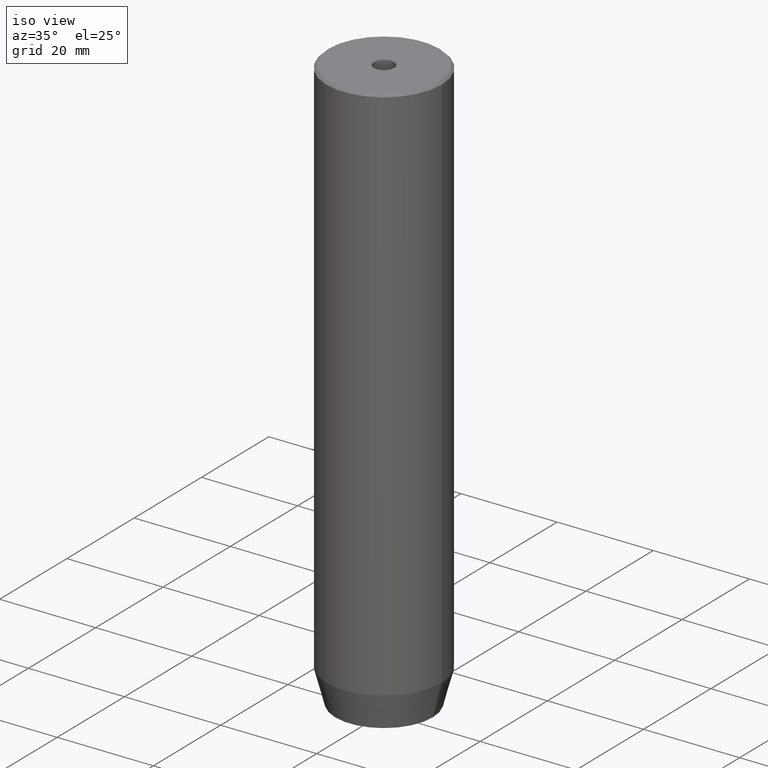
[diagram: clean part render]
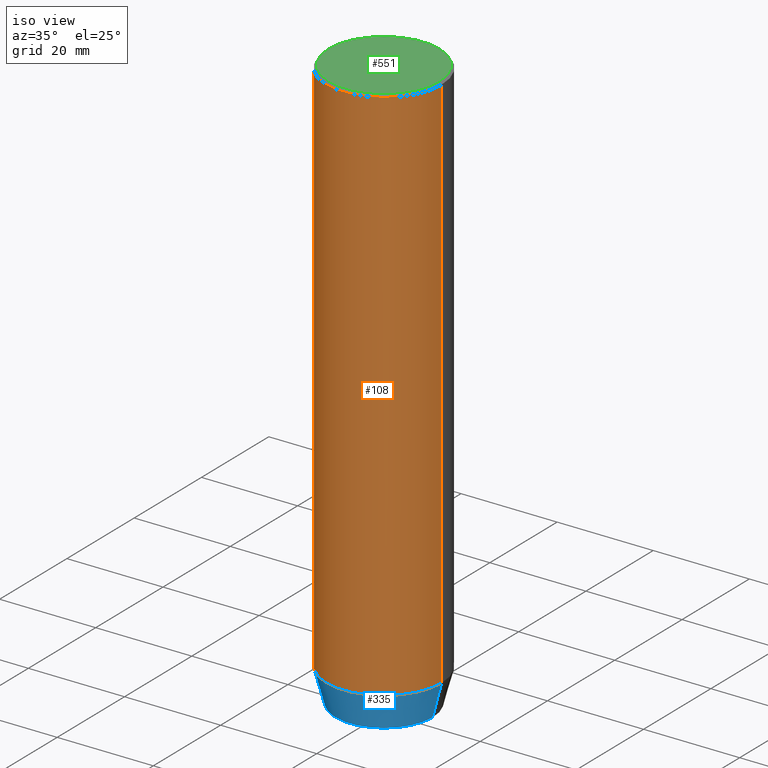
[diagram: same view with three faces highlighted in distinct colors, each labeled with its STEP entity id]
A machine part, iso view with three faces highlighted in distinct colors.
Their STEP definitions:

[orange] entity #108 — the highlighted cylindrical surface (partial cylindrical patch) has radius 12 mm, axis along (-0, -0, 1).
#4 = DIRECTION ( 'NONE',  ( -0.000000000000000000, -0.000000000000000000, 1.000000000000000000 ) ) ;
#9 = LINE ( 'NONE', #365, #400 ) ;
#18 = ORIENTED_EDGE ( 'NONE', *, *, #124, .F. ) ;
#20 = DIRECTION ( 'NONE',  ( 1.000000000000000000, 0.000000000000000000, 0.000000000000000000 ) ) ;
#32 = LINE ( 'NONE', #534, #37 ) ;
#37 = VECTOR ( 'NONE', #433, 1000.000000000000000 ) ;
#80 = VERTEX_POINT ( 'NONE', #227 ) ;
#108 = ADVANCED_FACE ( 'NONE', ( #408 ), #458, .T. ) ;
#124 = EDGE_CURVE ( 'NONE', #177, #80, #9, .T. ) ;
#125 = ORIENTED_EDGE ( 'NONE', *, *, #278, .T. ) ;
#148 = EDGE_LOOP ( 'NONE', ( #18, #360, #533, #125 ) ) ;
#177 = VERTEX_POINT ( 'NONE', #422 ) ;
#181 = AXIS2_PLACEMENT_3D ( 'NONE', #474, #195, #20 ) ;
#195 = DIRECTION ( 'NONE',  ( 0.000000000000000000, 0.000000000000000000, -1.000000000000000000 ) ) ;
#208 = AXIS2_PLACEMENT_3D ( 'NONE', #368, #239, #543 ) ;
#219 = CARTESIAN_POINT ( 'NONE',  ( 0.000000000000000000, 0.000000000000000000, -112.9999999999999858 ) ) ;
#227 = CARTESIAN_POINT ( 'NONE',  ( -12.00000000000000000, 1.469576158976823947E-15, -0.5000000000000056621 ) ) ;
#239 = DIRECTION ( 'NONE',  ( -0.000000000000000000, -0.000000000000000000, 1.000000000000000000 ) ) ;
#251 = CIRCLE ( 'NONE', #384, 12.00000000000000000 ) ;
#278 = EDGE_CURVE ( 'NONE', #468, #80, #472, .T. ) ;
#303 = CARTESIAN_POINT ( 'NONE',  ( 12.00000000000000000, 0.000000000000000000, -112.9999999999999858 ) ) ;
#360 = ORIENTED_EDGE ( 'NONE', *, *, #381, .T. ) ;
#365 = CARTESIAN_POINT ( 'NONE',  ( -12.00000000000000000, 1.469576158976823947E-15, 0.000000000000000000 ) ) ;
#368 = CARTESIAN_POINT ( 'NONE',  ( 0.000000000000000000, 0.000000000000000000, 0.000000000000000000 ) ) ;
#381 = EDGE_CURVE ( 'NONE', #177, #386, #251, .T. ) ;
#384 = AXIS2_PLACEMENT_3D ( 'NONE', #219, #531, #522 ) ;
#386 = VERTEX_POINT ( 'NONE', #303 ) ;
#400 = VECTOR ( 'NONE', #4, 1000.000000000000000 ) ;
#408 = FACE_OUTER_BOUND ( 'NONE', #148, .T. ) ;
#422 = CARTESIAN_POINT ( 'NONE',  ( -12.00000000000000000, 1.469576158976823947E-15, -112.9999999999999858 ) ) ;
#427 = EDGE_CURVE ( 'NONE', #386, #468, #32, .T. ) ;
#433 = DIRECTION ( 'NONE',  ( -0.000000000000000000, -0.000000000000000000, 1.000000000000000000 ) ) ;
#458 = CYLINDRICAL_SURFACE ( 'NONE', #208, 12.00000000000000000 ) ;
#468 = VERTEX_POINT ( 'NONE', #545 ) ;
#472 = CIRCLE ( 'NONE', #181, 12.00000000000000000 ) ;
#474 = CARTESIAN_POINT ( 'NONE',  ( 0.000000000000000000, 0.000000000000000000, -0.5000000000000056621 ) ) ;
#522 = DIRECTION ( 'NONE',  ( 1.000000000000000000, 0.000000000000000000, 0.000000000000000000 ) ) ;
#531 = DIRECTION ( 'NONE',  ( -0.000000000000000000, -0.000000000000000000, 1.000000000000000000 ) ) ;
#533 = ORIENTED_EDGE ( 'NONE', *, *, #427, .T. ) ;
#534 = CARTESIAN_POINT ( 'NONE',  ( 12.00000000000000000, 0.000000000000000000, 0.000000000000000000 ) ) ;
#543 = DIRECTION ( 'NONE',  ( 1.000000000000000000, 0.000000000000000000, 0.000000000000000000 ) ) ;
#545 = CARTESIAN_POINT ( 'NONE',  ( 12.00000000000000000, 0.000000000000000000, -0.5000000000000056621 ) ) ;

[blue] entity #335 — the highlighted conical surface has half-angle 15 deg.
#10 = VECTOR ( 'NONE', #221, 1000.000000000000000 ) ;
#45 = AXIS2_PLACEMENT_3D ( 'NONE', #153, #141, #467 ) ;
#46 = VECTOR ( 'NONE', #423, 1000.000000000000000 ) ;
#59 = CARTESIAN_POINT ( 'NONE',  ( 12.00000000000000000, 0.000000000000000000, -112.9999999999999858 ) ) ;
#74 = EDGE_LOOP ( 'NONE', ( #535, #257, #475, #152 ) ) ;
#141 = DIRECTION ( 'NONE',  ( -0.000000000000000000, -0.000000000000000000, 1.000000000000000000 ) ) ;
#152 = ORIENTED_EDGE ( 'NONE', *, *, #381, .F. ) ;
#153 = CARTESIAN_POINT ( 'NONE',  ( 0.000000000000000000, 0.000000000000000000, -120.0000000000000000 ) ) ;
#162 = DIRECTION ( 'NONE',  ( -0.000000000000000000, -0.000000000000000000, 1.000000000000000000 ) ) ;
#177 = VERTEX_POINT ( 'NONE', #422 ) ;
#187 = VERTEX_POINT ( 'NONE', #382 ) ;
#201 = FACE_OUTER_BOUND ( 'NONE', #74, .T. ) ;
#209 = CONICAL_SURFACE ( 'NONE', #328, 12.00000000000000000, 0.2617993877991500740 ) ;
#219 = CARTESIAN_POINT ( 'NONE',  ( 0.000000000000000000, 0.000000000000000000, -112.9999999999999858 ) ) ;
#221 = DIRECTION ( 'NONE',  ( -0.2588190451025213501, 3.169619151431772337E-17, 0.9659258262890680902 ) ) ;
#229 = EDGE_CURVE ( 'NONE', #312, #187, #554, .T. ) ;
#236 = LINE ( 'NONE', #539, #10 ) ;
#251 = CIRCLE ( 'NONE', #384, 12.00000000000000000 ) ;
#257 = ORIENTED_EDGE ( 'NONE', *, *, #229, .T. ) ;
#293 = CARTESIAN_POINT ( 'NONE',  ( -10.12435565298213547, 1.354726066681111050E-15, -120.0000000000000000 ) ) ;
#303 = CARTESIAN_POINT ( 'NONE',  ( 12.00000000000000000, 0.000000000000000000, -112.9999999999999858 ) ) ;
#312 = VERTEX_POINT ( 'NONE', #293 ) ;
#322 = EDGE_CURVE ( 'NONE', #187, #386, #511, .T. ) ;
#328 = AXIS2_PLACEMENT_3D ( 'NONE', #516, #162, #446 ) ;
#335 = ADVANCED_FACE ( 'NONE', ( #201 ), #209, .T. ) ;
#381 = EDGE_CURVE ( 'NONE', #177, #386, #251, .T. ) ;
#382 = CARTESIAN_POINT ( 'NONE',  ( 10.12435565298213547, 0.000000000000000000, -120.0000000000000000 ) ) ;
#384 = AXIS2_PLACEMENT_3D ( 'NONE', #219, #531, #522 ) ;
#386 = VERTEX_POINT ( 'NONE', #303 ) ;
#422 = CARTESIAN_POINT ( 'NONE',  ( -12.00000000000000000, 1.469576158976823947E-15, -112.9999999999999858 ) ) ;
#423 = DIRECTION ( 'NONE',  ( 0.2588190451025213501, 0.000000000000000000, 0.9659258262890680902 ) ) ;
#446 = DIRECTION ( 'NONE',  ( 1.000000000000000000, 0.000000000000000000, 0.000000000000000000 ) ) ;
#467 = DIRECTION ( 'NONE',  ( 1.000000000000000000, 0.000000000000000000, 0.000000000000000000 ) ) ;
#475 = ORIENTED_EDGE ( 'NONE', *, *, #322, .T. ) ;
#491 = EDGE_CURVE ( 'NONE', #312, #177, #236, .T. ) ;
#511 = LINE ( 'NONE', #59, #46 ) ;
#516 = CARTESIAN_POINT ( 'NONE',  ( 0.000000000000000000, 0.000000000000000000, -112.9999999999999858 ) ) ;
#522 = DIRECTION ( 'NONE',  ( 1.000000000000000000, 0.000000000000000000, 0.000000000000000000 ) ) ;
#531 = DIRECTION ( 'NONE',  ( -0.000000000000000000, -0.000000000000000000, 1.000000000000000000 ) ) ;
#535 = ORIENTED_EDGE ( 'NONE', *, *, #491, .F. ) ;
#539 = CARTESIAN_POINT ( 'NONE',  ( -12.00000000000000000, 1.469576158976823947E-15, -112.9999999999999858 ) ) ;
#554 = CIRCLE ( 'NONE', #45, 10.12435565298213547 ) ;

[green] entity #551 — the highlighted planar face has unit normal (0, -0, 1).
#11 = DIRECTION ( 'NONE',  ( -0.000000000000000000, -0.000000000000000000, 1.000000000000000000 ) ) ;
#13 = DIRECTION ( 'NONE',  ( -0.000000000000000000, -0.000000000000000000, 1.000000000000000000 ) ) ;
#23 = CARTESIAN_POINT ( 'NONE',  ( -11.50000000000000888, 0.000000000000000000, 0.000000000000000000 ) ) ;
#60 = EDGE_LOOP ( 'NONE', ( #351, #295 ) ) ;
#62 = CARTESIAN_POINT ( 'NONE',  ( 0.000000000000000000, 0.000000000000000000, -1.990051048614449116E-16 ) ) ;
#129 = PLANE ( 'NONE',  #161 ) ;
#157 = CIRCLE ( 'NONE', #494, 11.50000000000000888 ) ;
#161 = AXIS2_PLACEMENT_3D ( 'NONE', #178, #186, #188 ) ;
#165 = EDGE_CURVE ( 'NONE', #265, #314, #157, .T. ) ;
#176 = DIRECTION ( 'NONE',  ( 1.000000000000000000, 0.000000000000000000, 0.000000000000000000 ) ) ;
#178 = CARTESIAN_POINT ( 'NONE',  ( 0.000000000000000000, 0.000000000000000000, 0.000000000000000000 ) ) ;
#182 = FACE_OUTER_BOUND ( 'NONE', #60, .T. ) ;
#186 = DIRECTION ( 'NONE',  ( 0.000000000000000000, -0.000000000000000000, 1.000000000000000000 ) ) ;
#188 = DIRECTION ( 'NONE',  ( 1.000000000000000000, 0.000000000000000000, 0.000000000000000000 ) ) ;
#199 = CIRCLE ( 'NONE', #346, 2.099999999999998757 ) ;
#224 = CARTESIAN_POINT ( 'NONE',  ( 0.000000000000000000, 0.000000000000000000, 0.000000000000000000 ) ) ;
#233 = CIRCLE ( 'NONE', #507, 2.099999999999998757 ) ;
#248 = EDGE_CURVE ( 'NONE', #261, #380, #199, .T. ) ;
#256 = CARTESIAN_POINT ( 'NONE',  ( -2.099999999999998757, 2.571758278209440478E-16, -1.990051048614449116E-16 ) ) ;
#261 = VERTEX_POINT ( 'NONE', #256 ) ;
#263 = CARTESIAN_POINT ( 'NONE',  ( 2.099999999999998757, 0.000000000000000000, -1.990051048614449116E-16 ) ) ;
#265 = VERTEX_POINT ( 'NONE', #341 ) ;
#274 = AXIS2_PLACEMENT_3D ( 'NONE', #224, #317, #277 ) ;
#277 = DIRECTION ( 'NONE',  ( 1.000000000000000000, 0.000000000000000000, 0.000000000000000000 ) ) ;
#282 = FACE_BOUND ( 'NONE', #540, .T. ) ;
#295 = ORIENTED_EDGE ( 'NONE', *, *, #165, .T. ) ;
#314 = VERTEX_POINT ( 'NONE', #23 ) ;
#317 = DIRECTION ( 'NONE',  ( -0.000000000000000000, -0.000000000000000000, 1.000000000000000000 ) ) ;
#332 = DIRECTION ( 'NONE',  ( 1.000000000000000000, 0.000000000000000000, 0.000000000000000000 ) ) ;
#333 = CARTESIAN_POINT ( 'NONE',  ( 0.000000000000000000, 0.000000000000000000, 0.000000000000000000 ) ) ;
#341 = CARTESIAN_POINT ( 'NONE',  ( 11.50000000000000888, 1.438959988998140752E-15, 0.000000000000000000 ) ) ;
#346 = AXIS2_PLACEMENT_3D ( 'NONE', #62, #11, #332 ) ;
#351 = ORIENTED_EDGE ( 'NONE', *, *, #469, .T. ) ;
#370 = DIRECTION ( 'NONE',  ( -0.000000000000000000, -0.000000000000000000, 1.000000000000000000 ) ) ;
#380 = VERTEX_POINT ( 'NONE', #263 ) ;
#396 = ORIENTED_EDGE ( 'NONE', *, *, #501, .F. ) ;
#469 = EDGE_CURVE ( 'NONE', #314, #265, #487, .T. ) ;
#487 = CIRCLE ( 'NONE', #274, 11.50000000000000888 ) ;
#494 = AXIS2_PLACEMENT_3D ( 'NONE', #333, #13, #519 ) ;
#501 = EDGE_CURVE ( 'NONE', #380, #261, #233, .T. ) ;
#507 = AXIS2_PLACEMENT_3D ( 'NONE', #586, #370, #176 ) ;
#515 = ORIENTED_EDGE ( 'NONE', *, *, #248, .F. ) ;
#519 = DIRECTION ( 'NONE',  ( 1.000000000000000000, 0.000000000000000000, 0.000000000000000000 ) ) ;
#540 = EDGE_LOOP ( 'NONE', ( #396, #515 ) ) ;
#551 = ADVANCED_FACE ( 'NONE', ( #282, #182 ), #129, .T. ) ;
#586 = CARTESIAN_POINT ( 'NONE',  ( 0.000000000000000000, 0.000000000000000000, -1.990051048614449116E-16 ) ) ;